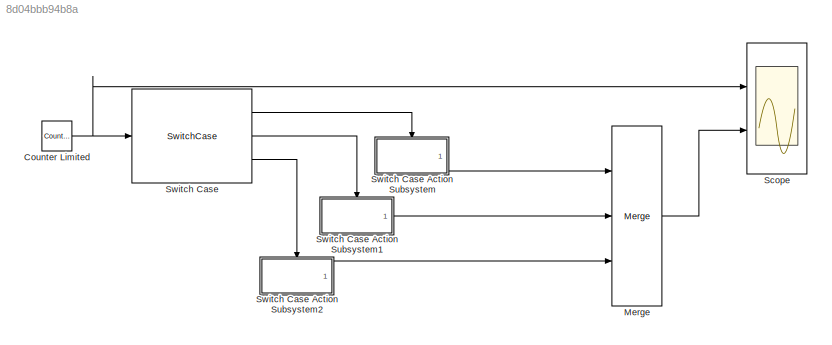
MODEL slx_8d04bbb94b8a
KIND model
BLOCK [Reference] Counter Limited  REF=simulink/Sources/Counter
Limited
  Ports = [0, 1]
  SourceBlock = simulink/Sources/Counter\nLimited
  SourceType = Counter Limited
  tsamp = -1
  uplimit = 8
BLOCK [Merge] Merge
  Inputs = 3
  Ports = [3, 1]
BLOCK [Scope] Scope
  DataFormat = StructureWithTime
  Floating = off
  NumInputPorts = 2
  Ports = [2]
  SampleTime = 0
  ShowLegends = off
  YMax = 5~5
  YMin = -5~-5
BLOCK [SwitchCase] Switch Case
  CaseConditions = {1:3,5:8}
  Ports = [1, 3]
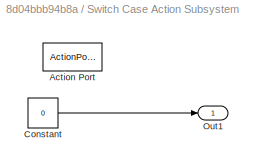
BLOCK [SubSystem] Switch Case Action Subsystem
  FunctionWithSeparateData = off
  MaskHideContents = off
  MinAlgLoopOccurrences = off
  Opaque = off
  Ports = [0, 1, 0, 0, 0, 0, 0, 1]
  PropExecContextOutsideSubsystem = off
  RTWSystemCode = Auto
  RequestExecContextInheritance = off
  TreatAsAtomicUnit = on
BLOCK [ActionPort] Switch Case Action Subsystem/Action Port
  ActionType = case
BLOCK [Constant] Switch Case Action Subsystem/Constant
  Value = 0
BLOCK [Outport] Switch Case Action Subsystem/Out1
  IconDisplay = Port number
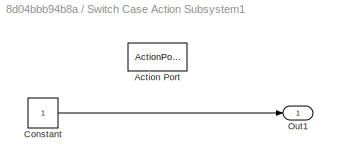
BLOCK [SubSystem] Switch Case Action Subsystem1
  FunctionWithSeparateData = off
  MaskHideContents = off
  MinAlgLoopOccurrences = off
  Opaque = off
  Ports = [0, 1, 0, 0, 0, 0, 0, 1]
  PropExecContextOutsideSubsystem = off
  RTWSystemCode = Auto
  RequestExecContextInheritance = off
  TreatAsAtomicUnit = on
BLOCK [ActionPort] Switch Case Action Subsystem1/Action Port
  ActionType = case
BLOCK [Constant] Switch Case Action Subsystem1/Constant
BLOCK [Outport] Switch Case Action Subsystem1/Out1
  IconDisplay = Port number
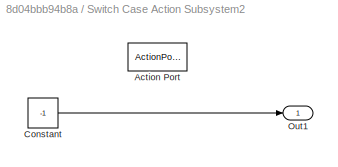
BLOCK [SubSystem] Switch Case Action Subsystem2
  FunctionWithSeparateData = off
  MaskHideContents = off
  MinAlgLoopOccurrences = off
  Opaque = off
  Ports = [0, 1, 0, 0, 0, 0, 0, 1]
  PropExecContextOutsideSubsystem = off
  RTWSystemCode = Auto
  RequestExecContextInheritance = off
  TreatAsAtomicUnit = on
BLOCK [ActionPort] Switch Case Action Subsystem2/Action Port
  ActionType = default
BLOCK [Constant] Switch Case Action Subsystem2/Constant
  Value = -1
BLOCK [Outport] Switch Case Action Subsystem2/Out1
  IconDisplay = Port number
NET Counter Limited:1 -> Scope:1, Switch Case:1
LINE Merge:1 -> Scope:2
LINE Switch Case Action Subsystem/Constant:1 -> Switch Case Action Subsystem/Out1:1
LINE Switch Case Action Subsystem1/Constant:1 -> Switch Case Action Subsystem1/Out1:1
LINE Switch Case Action Subsystem1:1 -> Merge:2
LINE Switch Case Action Subsystem2/Constant:1 -> Switch Case Action Subsystem2/Out1:1
LINE Switch Case Action Subsystem2:1 -> Merge:3
LINE Switch Case Action Subsystem:1 -> Merge:1
LINE Switch Case:1 -> Switch Case Action Subsystem:ifaction
LINE Switch Case:2 -> Switch Case Action Subsystem1:ifaction
LINE Switch Case:3 -> Switch Case Action Subsystem2:ifaction
note: NET lines group one-source signal fan-out (src -> all destinations, sorted); 1:1 wires keep LINE
